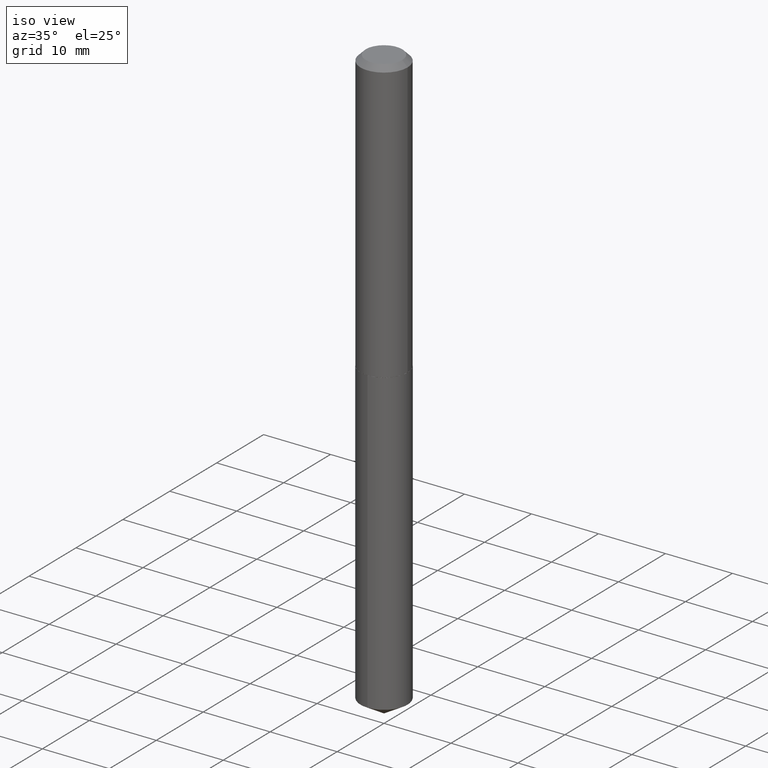
[diagram: clean part render]
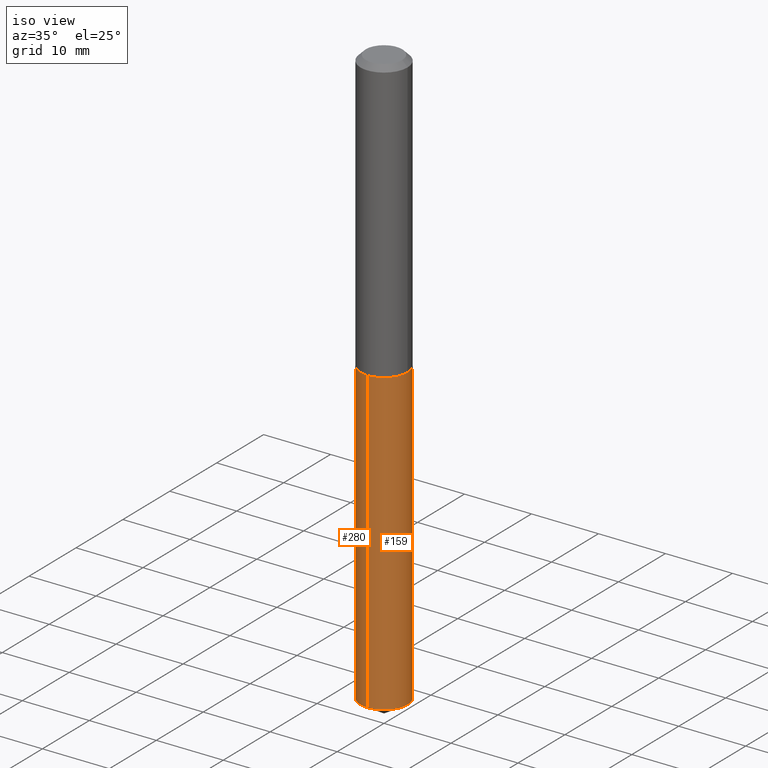
[diagram: same view with one multi-face feature highlighted, each face labeled with its STEP entity id]
A machine part, iso view. The highlighted faces form ONE feature: a constant-radius fillet chain: 2 tangent blend faces with common blend radius 3.5179 mm. The faces share edges in the B-rep.
Their STEP definitions:
[1] entity #159 (Cylinder):
#21 = EDGE_CURVE ( 'NONE', #305, #132, #368, .T. ) ;
#26 = VECTOR ( 'NONE', #267, 39.37007874015748143 ) ;
#40 = VERTEX_POINT ( 'NONE', #106 ) ;
#41 = CARTESIAN_POINT ( 'NONE',  ( -9.671403308594642649E-16, -0.1385000000000119469, -3.416780804264683002 ) ) ;
#48 = DIRECTION ( 'NONE',  ( -6.982962677686265922E-15, -1.000000000000000000, 3.944906850056697224E-15 ) ) ;
#53 = FACE_OUTER_BOUND ( 'NONE', #341, .T. ) ;
#71 = VERTEX_POINT ( 'NONE', #41 ) ;
#72 = CIRCLE ( 'NONE', #289, 0.1384999999999999842 ) ;
#81 = DIRECTION ( 'NONE',  ( -2.445494281771454949E-29, 3.491444856353557226E-15, 1.000000000000000000 ) ) ;
#93 = AXIS2_PLACEMENT_3D ( 'NONE', #359, #81, #48 ) ;
#106 = CARTESIAN_POINT ( 'NONE',  ( 9.841016890278222647E-16, 0.1384999999999880771, -3.416780804264684335 ) ) ;
#109 = EDGE_CURVE ( 'NONE', #40, #132, #124, .T. ) ;
#112 = DIRECTION ( 'NONE',  ( -6.982962677686265922E-15, -1.000000000000000000, 3.944906850056697224E-15 ) ) ;
#119 = ORIENTED_EDGE ( 'NONE', *, *, #168, .T. ) ;
#120 = DIRECTION ( 'NONE',  ( -2.445494281771454949E-29, 3.491444856353557226E-15, 1.000000000000000000 ) ) ;
#122 = VECTOR ( 'NONE', #324, 39.37007874015748143 ) ;
#124 = LINE ( 'NONE', #383, #26 ) ;
#132 = VERTEX_POINT ( 'NONE', #268 ) ;
#147 = LINE ( 'NONE', #353, #122 ) ;
#159 = ADVANCED_FACE ( 'NONE', ( #53 ), #185, .T. ) ;
#165 = ORIENTED_EDGE ( 'NONE', *, *, #109, .T. ) ;
#166 = CARTESIAN_POINT ( 'NONE',  ( 4.039914467817845918E-29, -5.767927171768876561E-15, -1.652000000000000135 ) ) ;
#168 = EDGE_CURVE ( 'NONE', #71, #40, #72, .T. ) ;
#173 = ORIENTED_EDGE ( 'NONE', *, *, #187, .F. ) ;
#185 = CYLINDRICAL_SURFACE ( 'NONE', #93, 0.1385000000000000120 ) ;
#187 = EDGE_CURVE ( 'NONE', #71, #305, #147, .T. ) ;
#190 = CARTESIAN_POINT ( 'NONE',  ( -9.671403308595074551E-16, -0.1385000000000057852, -1.651999999999999469 ) ) ;
#267 = DIRECTION ( 'NONE',  ( -2.445494281771454949E-29, 3.491444856353556832E-15, 1.000000000000000000 ) ) ;
#268 = CARTESIAN_POINT ( 'NONE',  ( 9.841016890278224619E-16, 0.1384999999999942388, -1.652000000000000579 ) ) ;
#283 = AXIS2_PLACEMENT_3D ( 'NONE', #166, #310, #112 ) ;
#289 = AXIS2_PLACEMENT_3D ( 'NONE', #321, #120, #316 ) ;
#305 = VERTEX_POINT ( 'NONE', #190 ) ;
#310 = DIRECTION ( 'NONE',  ( -2.445494281771454949E-29, 3.491444856353557226E-15, 1.000000000000000000 ) ) ;
#315 = ORIENTED_EDGE ( 'NONE', *, *, #21, .F. ) ;
#316 = DIRECTION ( 'NONE',  ( -6.982962677686265922E-15, -1.000000000000000000, 3.944906850056698013E-15 ) ) ;
#321 = CARTESIAN_POINT ( 'NONE',  ( 8.355675833227158781E-29, -1.192956203341030028E-14, -3.416780804264683891 ) ) ;
#324 = DIRECTION ( 'NONE',  ( -2.445494281771454949E-29, 3.491444856353556832E-15, 1.000000000000000000 ) ) ;
#341 = EDGE_LOOP ( 'NONE', ( #119, #165, #315, #173 ) ) ;
#353 = CARTESIAN_POINT ( 'NONE',  ( -9.671403308595074551E-16, -0.1385000000000057852, -1.651999999999999469 ) ) ;
#359 = CARTESIAN_POINT ( 'NONE',  ( 4.039914467817845918E-29, -5.767927171768876561E-15, -1.652000000000000135 ) ) ;
#368 = CIRCLE ( 'NONE', #283, 0.1385000000000000120 ) ;
#383 = CARTESIAN_POINT ( 'NONE',  ( 9.841016890277790745E-16, 0.1384999999999942388, -1.652000000000000579 ) ) ;
[2] entity #280 (Cylinder):
#5 = DIRECTION ( 'NONE',  ( -6.982962677686265922E-15, -1.000000000000000000, 3.944906850056698013E-15 ) ) ;
#9 = ORIENTED_EDGE ( 'NONE', *, *, #187, .T. ) ;
#12 = DIRECTION ( 'NONE',  ( -6.982962677686265922E-15, -1.000000000000000000, 3.944906850056697224E-15 ) ) ;
#14 = ORIENTED_EDGE ( 'NONE', *, *, #287, .T. ) ;
#26 = VECTOR ( 'NONE', #267, 39.37007874015748143 ) ;
#40 = VERTEX_POINT ( 'NONE', #106 ) ;
#41 = CARTESIAN_POINT ( 'NONE',  ( -9.671403308594642649E-16, -0.1385000000000119469, -3.416780804264683002 ) ) ;
#42 = CIRCLE ( 'NONE', #129, 0.1384999999999999842 ) ;
#71 = VERTEX_POINT ( 'NONE', #41 ) ;
#78 = EDGE_CURVE ( 'NONE', #132, #305, #115, .T. ) ;
#106 = CARTESIAN_POINT ( 'NONE',  ( 9.841016890278222647E-16, 0.1384999999999880771, -3.416780804264684335 ) ) ;
#109 = EDGE_CURVE ( 'NONE', #40, #132, #124, .T. ) ;
#115 = CIRCLE ( 'NONE', #362, 0.1385000000000000120 ) ;
#122 = VECTOR ( 'NONE', #324, 39.37007874015748143 ) ;
#124 = LINE ( 'NONE', #383, #26 ) ;
#129 = AXIS2_PLACEMENT_3D ( 'NONE', #154, #276, #5 ) ;
#132 = VERTEX_POINT ( 'NONE', #268 ) ;
#147 = LINE ( 'NONE', #353, #122 ) ;
#154 = CARTESIAN_POINT ( 'NONE',  ( 8.355675833227158781E-29, -1.192956203341030028E-14, -3.416780804264683891 ) ) ;
#158 = AXIS2_PLACEMENT_3D ( 'NONE', #330, #218, #273 ) ;
#170 = DIRECTION ( 'NONE',  ( -2.445494281771454949E-29, 3.491444856353557226E-15, 1.000000000000000000 ) ) ;
#187 = EDGE_CURVE ( 'NONE', #71, #305, #147, .T. ) ;
#190 = CARTESIAN_POINT ( 'NONE',  ( -9.671403308595074551E-16, -0.1385000000000057852, -1.651999999999999469 ) ) ;
#215 = CYLINDRICAL_SURFACE ( 'NONE', #158, 0.1385000000000000120 ) ;
#218 = DIRECTION ( 'NONE',  ( -2.445494281771454949E-29, 3.491444856353557226E-15, 1.000000000000000000 ) ) ;
#267 = DIRECTION ( 'NONE',  ( -2.445494281771454949E-29, 3.491444856353556832E-15, 1.000000000000000000 ) ) ;
#268 = CARTESIAN_POINT ( 'NONE',  ( 9.841016890278224619E-16, 0.1384999999999942388, -1.652000000000000579 ) ) ;
#273 = DIRECTION ( 'NONE',  ( -6.982962677686265922E-15, -1.000000000000000000, 3.944906850056697224E-15 ) ) ;
#276 = DIRECTION ( 'NONE',  ( -2.445494281771454949E-29, 3.491444856353557226E-15, 1.000000000000000000 ) ) ;
#280 = ADVANCED_FACE ( 'NONE', ( #306 ), #215, .T. ) ;
#284 = CARTESIAN_POINT ( 'NONE',  ( 4.039914467817845918E-29, -5.767927171768876561E-15, -1.652000000000000135 ) ) ;
#287 = EDGE_CURVE ( 'NONE', #40, #71, #42, .T. ) ;
#305 = VERTEX_POINT ( 'NONE', #190 ) ;
#306 = FACE_OUTER_BOUND ( 'NONE', #344, .T. ) ;
#324 = DIRECTION ( 'NONE',  ( -2.445494281771454949E-29, 3.491444856353556832E-15, 1.000000000000000000 ) ) ;
#330 = CARTESIAN_POINT ( 'NONE',  ( 4.039914467817845918E-29, -5.767927171768876561E-15, -1.652000000000000135 ) ) ;
#344 = EDGE_LOOP ( 'NONE', ( #376, #14, #9, #351 ) ) ;
#351 = ORIENTED_EDGE ( 'NONE', *, *, #78, .F. ) ;
#353 = CARTESIAN_POINT ( 'NONE',  ( -9.671403308595074551E-16, -0.1385000000000057852, -1.651999999999999469 ) ) ;
#362 = AXIS2_PLACEMENT_3D ( 'NONE', #284, #170, #12 ) ;
#376 = ORIENTED_EDGE ( 'NONE', *, *, #109, .F. ) ;
#383 = CARTESIAN_POINT ( 'NONE',  ( 9.841016890277790745E-16, 0.1384999999999942388, -1.652000000000000579 ) ) ;